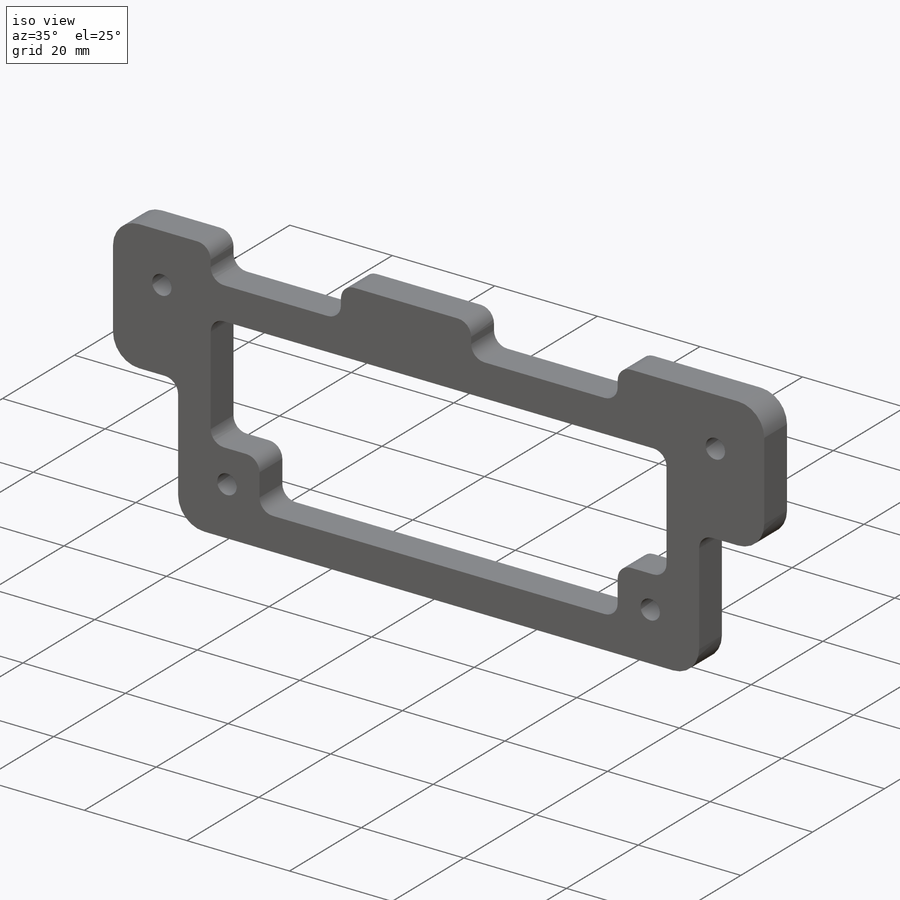
[diagram: iso view]
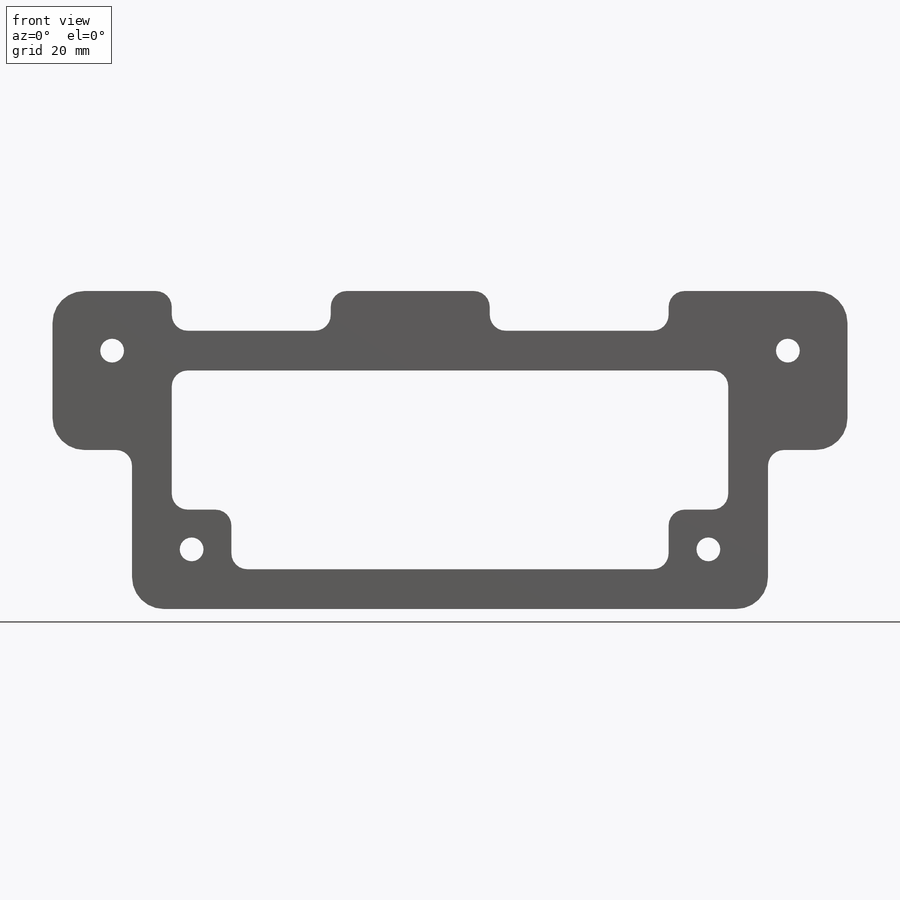
[diagram: front view]
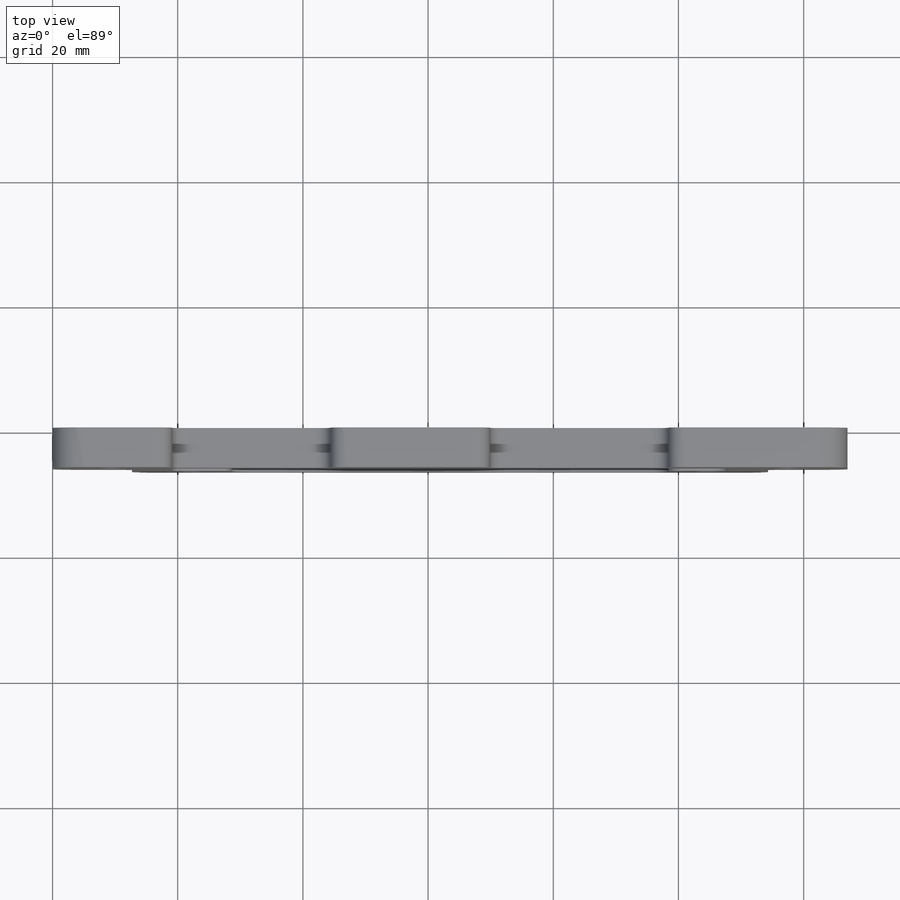
[diagram: top view]
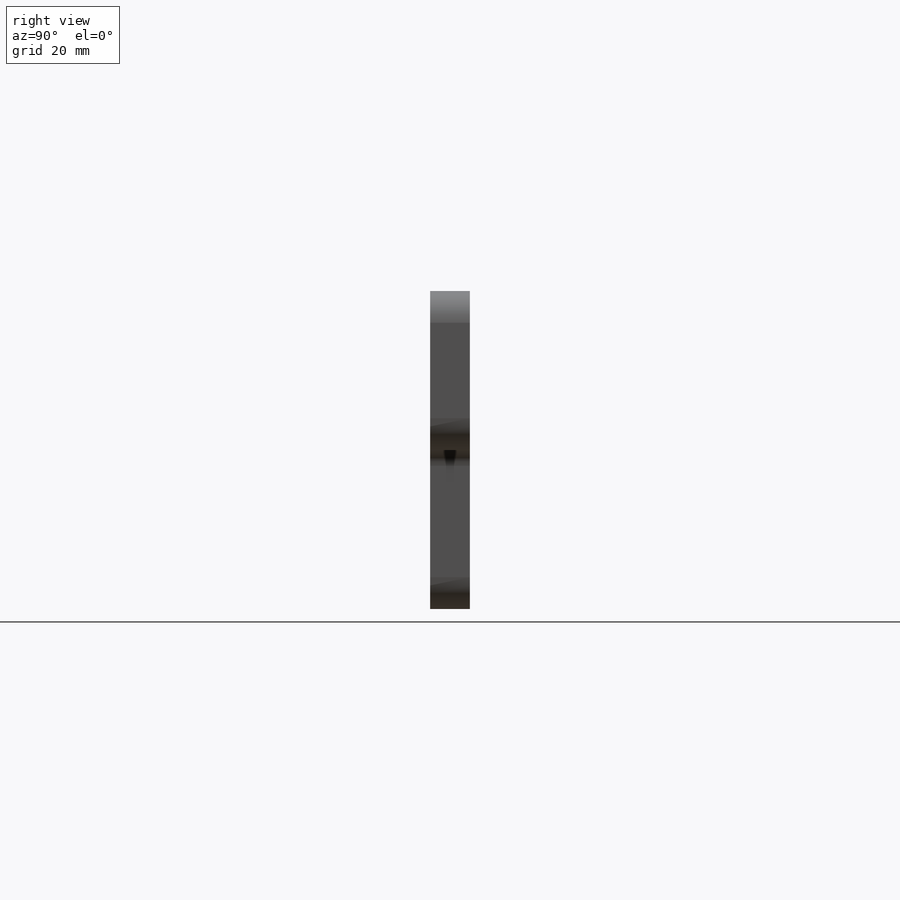
[diagram: right view]
SOLIDWORKS PART (.sldprt)
format: sldprt  version: not decoded by parser v0  size: 314,368 bytes
history: native  units: mm
features: fillet x3, sketch x2, material x1, extrude x1, cut_extrude x1 (+13 scaffold rows collapsed)
feature tree (21):
  scaffold x13  (default folders/planes/origin — collapsed)
  material  "Material <not specified>"
  sketch  "Sketch1"  dims[D6=3.175mm D16=3.7973mm D1=127.0mm D2=50.8mm D3=12.7mm D4=12.7mm D5=25.4mm D7=14.478mm D8=10.922mm D9=3.175mm D10=3.175mm D11=20.066mm D12=11.176mm D13=38.1mm D14=48.26mm D15=52.324mm D17=9.525mm D18=9.525mm D19=9.525mm D20=9.525mm D21=9.525mm D22=9.525mm D23=9.525mm D24=9.525mm]
  extrude  "Boss-Extrude1"  Depth=6.35mm
  fillet  "Fillet1"  Radius=5.08mm
  fillet  "Fillet2"  Radius=2.54mm
  sketch  "Sketch2"  dims[D1=6.35mm D2=6.35mm D3=9.525mm D4=9.525mm D5=9.525mm D6=9.525mm D7=6.35mm D8=12.7mm D9=6.35mm D10=6.35mm D11=25.4mm D12=25.4mm D13=28.575mm]
  cut_extrude  "Cut-Extrude1"  Depth=8.89mm
  fillet  "Fillet3"  Radius=2.54mm
decode coverage: 7 of 7 modeling features carry decoded parameters
note: suppression state not decoded; provenance and decode notes live in map.json
